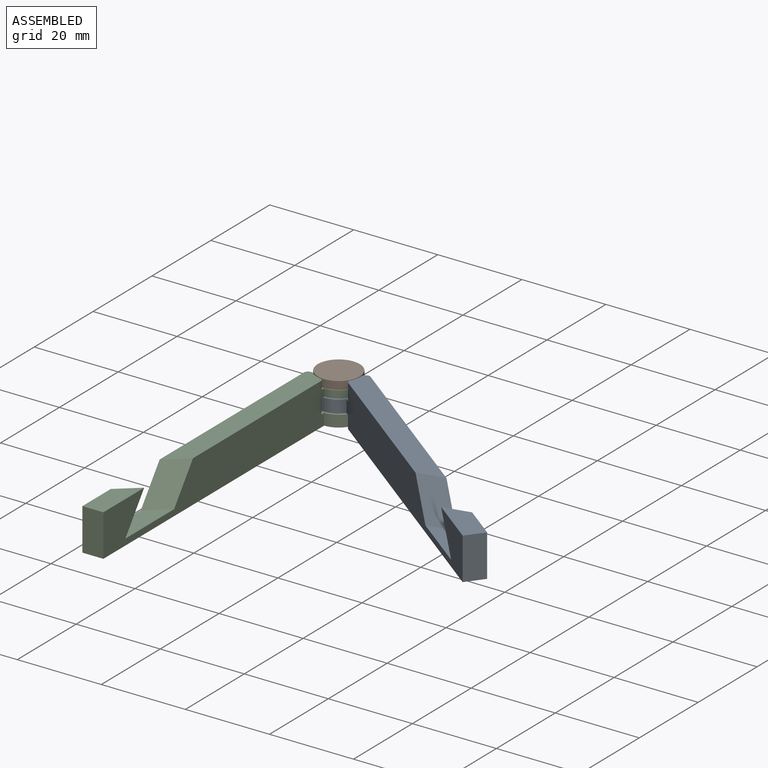
[diagram: assembled view]
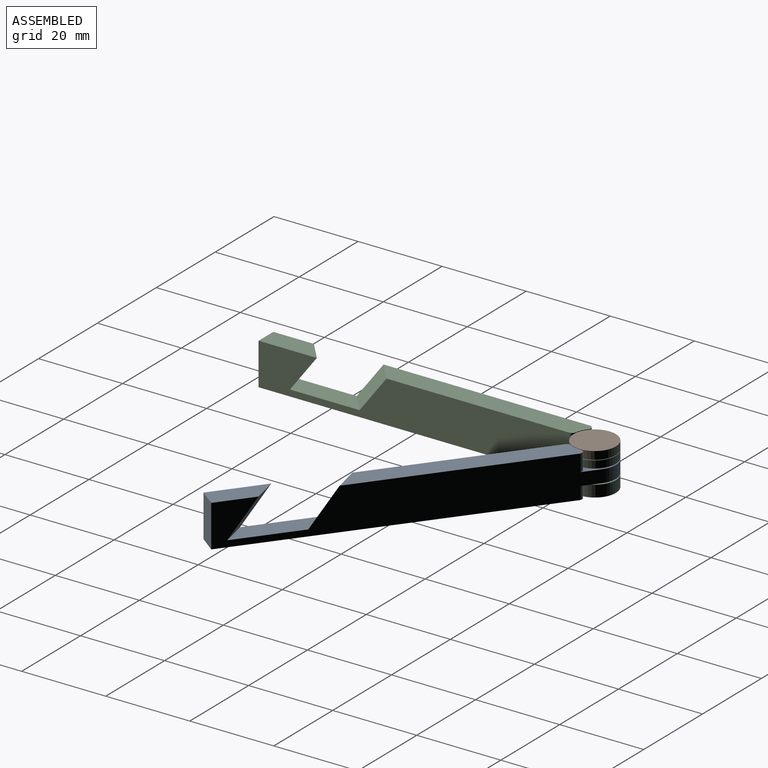
[diagram: assembled view, second angle]
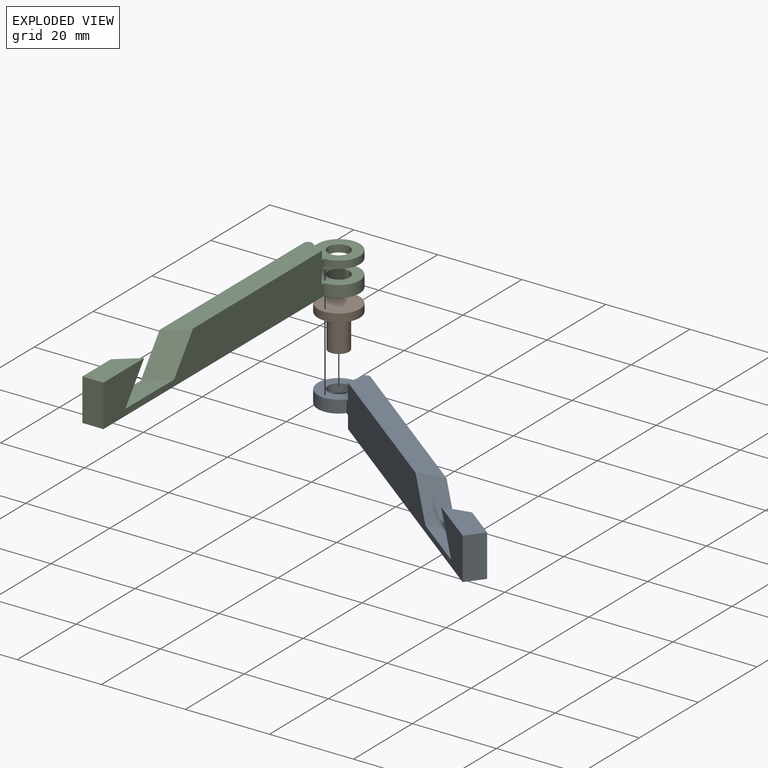
[diagram: exploded view]
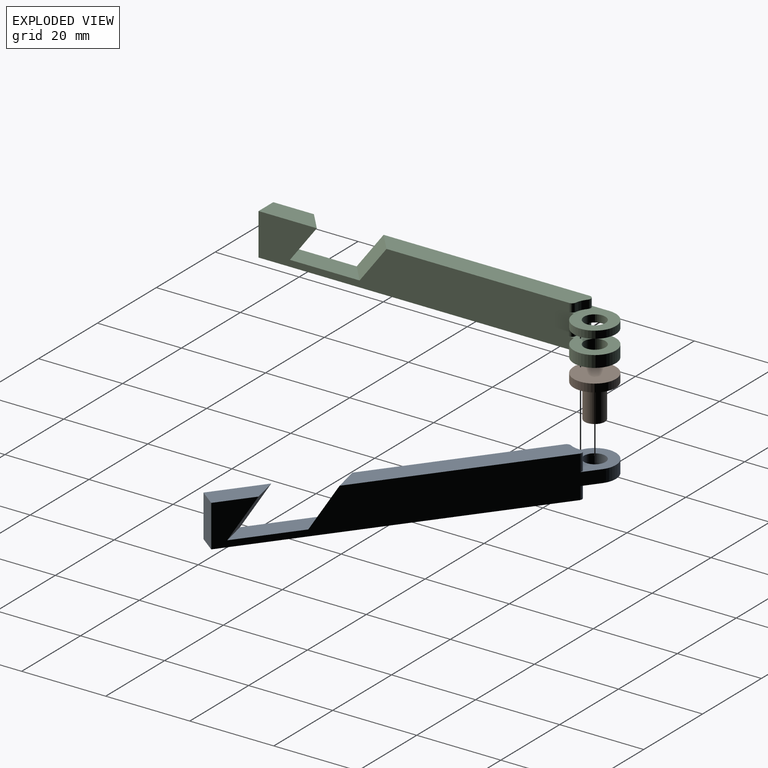
[diagram: exploded view, second angle]
ASSEMBLY  parts=3 mates=4
PART A: 19 faces, bbox 10x85x10 mm
  f0: plane 50.01x5mm, normal (0,0,1), area 235.5mm2, adj f1,f2,f9,f13,f14,f17
  f1: plane 80x10mm, normal (1,0,0), area 625.9mm2, adj f0,f3,f4,f5,f6,f7,f8,f11
  f2: plane 75x10mm, normal (-1,0,0), area 601.2mm2, adj f0,f3,f4,f5,f6,f7,f8,f12
  f3: plane 13.87x5mm, normal (0,0,1), area 58.8mm2, adj f1,f2,f4,f16
  f4: plane 10x5mm, normal (0,-1,0), area 50mm2, adj f1,f2,f3,f5
  f5: plane 76.26x5mm, normal (0,0,-1), area 377.3mm2, adj f1,f2,f4,f10,f11,f12
  f6: cylinder r=5mm len=10mm, axis (0,0,1), area 70.7mm2, adj f1,f2,f7,f8
  f7: plane 11.12x10mm, normal (0,0,-1), area 61.2mm2, adj f1,f2,f6,f10,f11,f12,f15
  f8: plane 11.12x10mm, normal (0,0,1), area 61.2mm2, adj f1,f2,f6,f9,f13,f14,f15
  f9: cylinder r=5.2mm len=4mm, axis (0,0,-1), area 11.2mm2, adj f0,f8,f13,f14
  f10: cylinder r=5.2mm len=3mm, axis (0,0,1), area 8.4mm2, adj f5,f7,f11,f12
  f11: cylinder r=1mm len=3mm, axis (0,0,1), area 6.8mm2, adj f1,f5,f7,f10
  f12: cylinder r=1mm len=3mm, axis (0,0,1), area 4.2mm2, adj f2,f5,f7,f10
  f13: cylinder r=1mm len=4mm, axis (0,0,-1), area 9.1mm2, adj f0,f1,f8,f9
  f14: cylinder r=1mm len=4mm, axis (0,0,-1), area 5.6mm2, adj f0,f2,f8,f9
  f15: cylinder r=2.55mm len=5.1mm, axis (0,0,1), area 48.1mm2, adj f7,f8
  f16: plane 10.6x8.5mm, normal (0.56,0.66,-0.5), area 64.1mm2, adj f1,f2,f3,f18
  f17: plane 10.6x8.5mm, normal (-0.56,-0.66,0.5), area 64.1mm2, adj f0,f1,f2,f18
  f18: plane 20.78x5mm, normal (0,0,1), area 82.9mm2, adj f1,f2,f16,f17
PART B: 5 faces, bbox 10x10x9.9 mm
  f0: cylinder r=5mm len=10mm, axis (0,0,-1), area 59.7mm2, adj f1,f2
  f1: plane 10x10mm, normal (0,0,1), area 78.5mm2, adj f0
  f2: plane 10x10mm, normal (0,0,-1), area 60.3mm2, adj f0,f3
  f3: cylinder r=2.41mm len=8mm, axis (0,0,1), area 121.1mm2, adj f2,f4
  f4: plane 4.82x4.82mm, normal (0,0,-1), area 18.2mm2, adj f3
PART C: 22 faces, bbox 10x85x10 mm
  f0: plane 13.87x5mm, normal (0,0,1), area 58.8mm2, adj f1,f2,f4,f19
  f1: plane 75x10mm, normal (1,0,0), area 602.6mm2, adj f0,f3,f4,f5,f6,f7,f9,f11
  f2: plane 80x10mm, normal (-1,0,0), area 632.6mm2, adj f0,f3,f4,f5,f6,f7,f9,f10
  f3: cylinder r=5mm len=10mm, axis (0,0,1), area 41.2mm2, adj f1,f2,f9,f13
  f4: plane 10x5mm, normal (0,-1,0), area 50mm2, adj f0,f1,f2,f5
  f5: plane 85x10mm, normal (0,0,-1), area 438.5mm2, adj f1,f2,f4,f7,f17
  f6: plane 50.01x5mm, normal (0,0,1), area 235.5mm2, adj f1,f2,f8,f10,f11,f21
  f7: cylinder r=5mm len=10mm, axis (0,0,1), area 64.8mm2, adj f1,f2,f5,f14
  f8: cylinder r=5.2mm len=2.52mm, axis (0,0,1), area 5.6mm2, adj f6,f9,f10,f11
  f9: plane 11.12x10mm, normal (0,0,1), area 61.2mm2, adj f1,f2,f3,f8,f10,f11,f18
  f10: cylinder r=1mm len=2mm, axis (0,0,1), area 4.5mm2, adj f2,f6,f8,f9
  f11: cylinder r=1mm len=2mm, axis (0,0,1), area 2.8mm2, adj f1,f6,f8,f9
  f12: cylinder r=5.3mm len=3.5mm, axis (0,0,-1), area 9.8mm2, adj f13,f14,f15,f16
  f13: plane 11.22x10mm, normal (0,0,-1), area 61.8mm2, adj f1,f2,f3,f12,f15,f16,f18
  f14: plane 11.22x10mm, normal (0,0,1), area 61.8mm2, adj f1,f2,f7,f12,f15,f16,f17
  f15: cylinder r=1mm len=3.5mm, axis (0,0,-1), area 4.9mm2, adj f1,f12,f13,f14
  f16: cylinder r=1mm len=3.5mm, axis (0,0,-1), area 7.9mm2, adj f2,f12,f13,f14
  f17: cylinder r=2.55mm len=5.1mm, axis (0,0,1), area 44.1mm2, adj f5,f14
  f18: cylinder r=2.55mm len=5.1mm, axis (0,0,1), area 28mm2, adj f9,f13
  f19: plane 10.6x8.5mm, normal (-0.56,0.66,-0.5), area 64.1mm2, adj f0,f1,f2,f20
  f20: plane 20.78x5mm, normal (0,0,1), area 82.9mm2, adj f1,f2,f19,f21
  f21: plane 10.6x8.5mm, normal (0.56,-0.66,0.5), area 64.1mm2, adj f1,f2,f6,f20
PLACE A rot(axis=(0,0,1),52.6deg) t=(52.67,16.13,1.71)mm
PLACE B rot(axis=(0,0,1),107.9deg) t=(-10.85,64.76,9.81)mm
PLACE C t=(-15.85,-15.24,1.71)mm fixed
MATE planar B.f0 <-> A.f12  axis (0,0,1) through (-10.85,64.76,11.71)mm
MATE planar C.f6 <-> A.f0  axis (0,0,1) through (-13.4,36.65,11.71)mm
MATE cylindrical C.f3 <-> B.f3  axis (0,0,1) through (-10.85,64.76,4.46)mm
MATE cylindrical B.f3 <-> A.f6  axis (0,0,1) through (-10.85,64.76,5.81)mm
